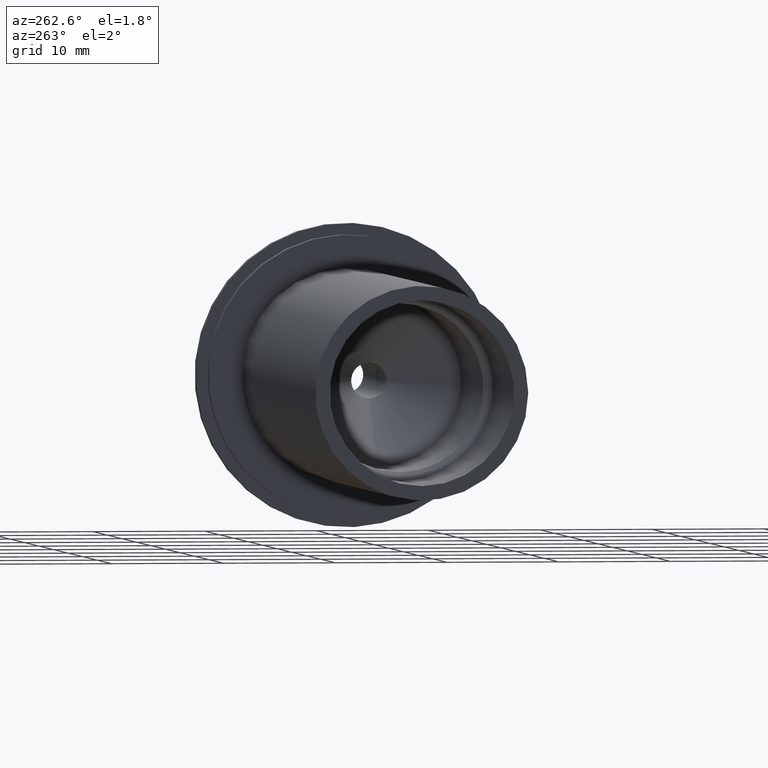
[diagram: clean part render]
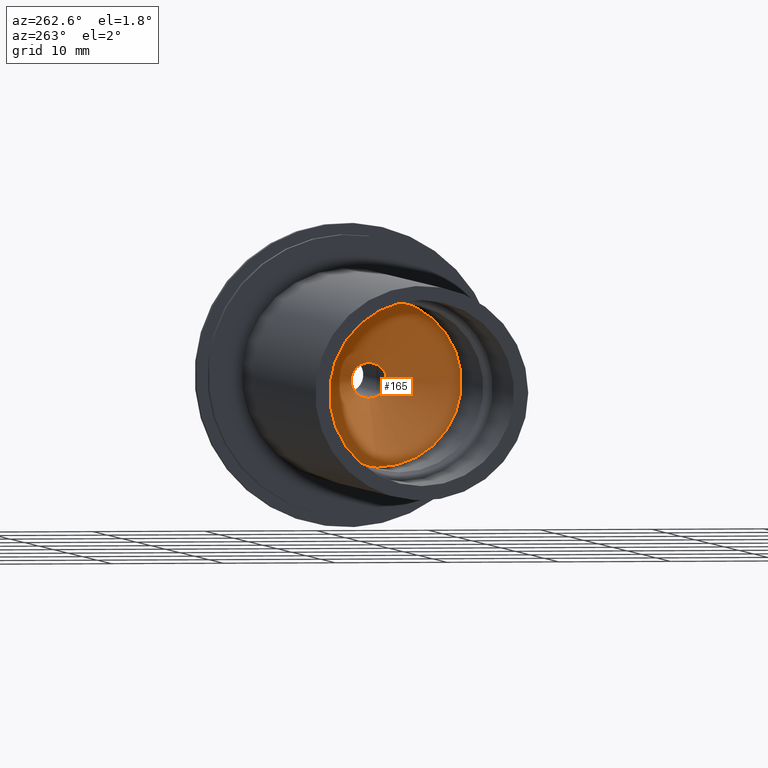
[diagram: same view with one face highlighted and labeled with its STEP entity id]
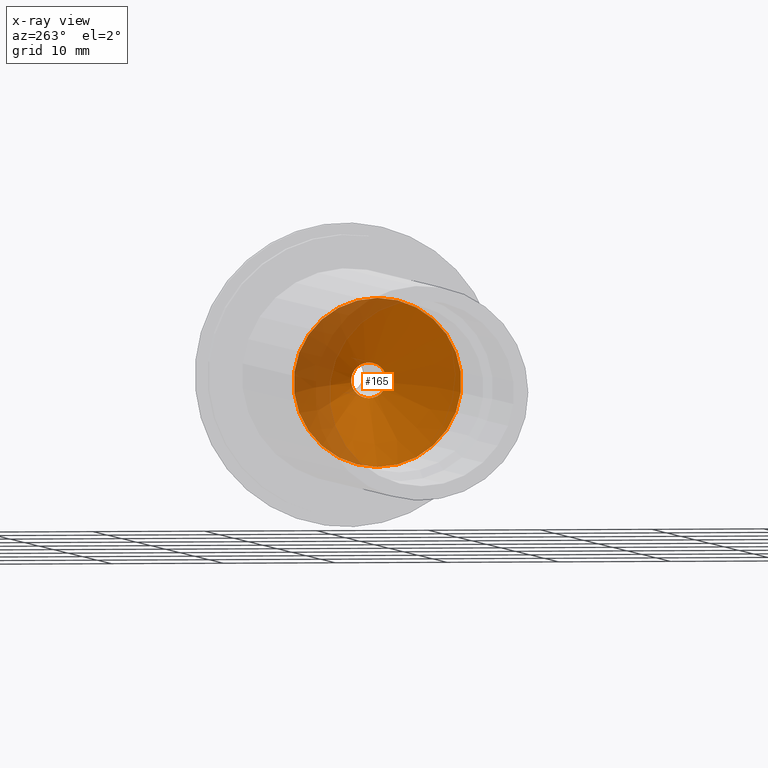
[diagram: x-ray of the same camera — body ghosted, the highlighted face saturated]
A machine part, auxiliary view. The second image highlights one B-rep face of the part: STEP entity #165.
The next image is the same camera in x-ray: the body ghosted, the highlighted face saturated — about 28% of this face is hidden behind the body in this view.
In plain terms, the highlighted conical surface has half-angle 45 deg.
Its self-contained STEP definition (entity closure, byte-faithful):
#23=CONICAL_SURFACE('',#203,3.75,0.785398163397448);
#26=FACE_OUTER_BOUND('',#38,.T.);
#38=EDGE_LOOP('',(#121,#122,#123,#124,#125));
#54=LINE('',#296,#62);
#62=VECTOR('',#239,3.75);
#70=CIRCLE('',#201,1.5875);
#71=CIRCLE('',#202,1.5875);
#72=CIRCLE('',#204,7.5);
#83=VERTEX_POINT('',#288);
#84=VERTEX_POINT('',#290);
#85=VERTEX_POINT('',#294);
#97=EDGE_CURVE('',#84,#83,#70,.T.);
#98=EDGE_CURVE('',#83,#84,#71,.T.);
#99=EDGE_CURVE('',#85,#85,#72,.T.);
#100=EDGE_CURVE('',#85,#84,#54,.T.);
#121=ORIENTED_EDGE('',*,*,#99,.T.);
#122=ORIENTED_EDGE('',*,*,#100,.T.);
#123=ORIENTED_EDGE('',*,*,#97,.T.);
#124=ORIENTED_EDGE('',*,*,#98,.T.);
#125=ORIENTED_EDGE('',*,*,#100,.F.);
#165=ADVANCED_FACE('',(#26),#23,.F.);
#201=AXIS2_PLACEMENT_3D('',#291,#231,#232);
#202=AXIS2_PLACEMENT_3D('',#292,#233,#234);
#203=AXIS2_PLACEMENT_3D('',#293,#235,#236);
#204=AXIS2_PLACEMENT_3D('',#295,#237,#238);
#231=DIRECTION('center_axis',(1.,0.,0.));
#232=DIRECTION('ref_axis',(0.,0.,-1.));
#233=DIRECTION('center_axis',(1.,0.,0.));
#234=DIRECTION('ref_axis',(0.,0.,-1.));
#235=DIRECTION('center_axis',(-1.,0.,0.));
#236=DIRECTION('ref_axis',(0.,0.,1.));
#237=DIRECTION('center_axis',(-1.,0.,0.));
#238=DIRECTION('ref_axis',(0.,0.,1.));
#239=DIRECTION('',(0.707106781186547,8.65956056235493E-17,0.707106781186547));
#288=CARTESIAN_POINT('',(-16.0875,-1.94412679364642E-16,1.5875));
#290=CARTESIAN_POINT('',(-16.0875,-1.94412679364642E-16,-1.5875));
#291=CARTESIAN_POINT('Origin',(-16.0875,0.,0.));
#292=CARTESIAN_POINT('Origin',(-16.0875,0.,0.));
#293=CARTESIAN_POINT('Origin',(-18.25,0.,0.));
#294=CARTESIAN_POINT('',(-22.,-9.18485099360515E-16,-7.5));
#295=CARTESIAN_POINT('Origin',(-22.,0.,0.));
#296=CARTESIAN_POINT('',(-18.25,-4.59242549680257E-16,-3.75));